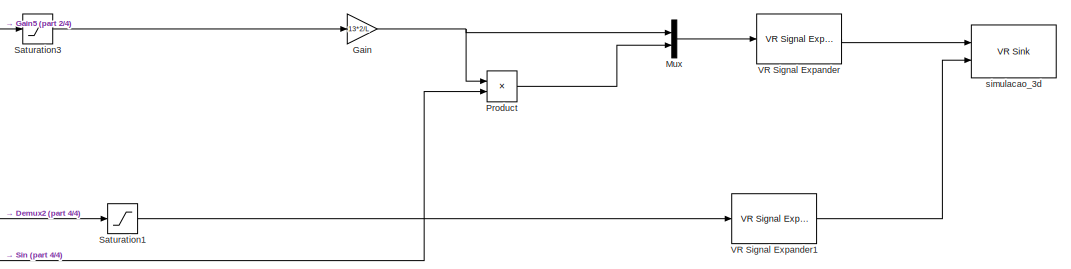
[diagram: root canvas - part 1/4, top right region]
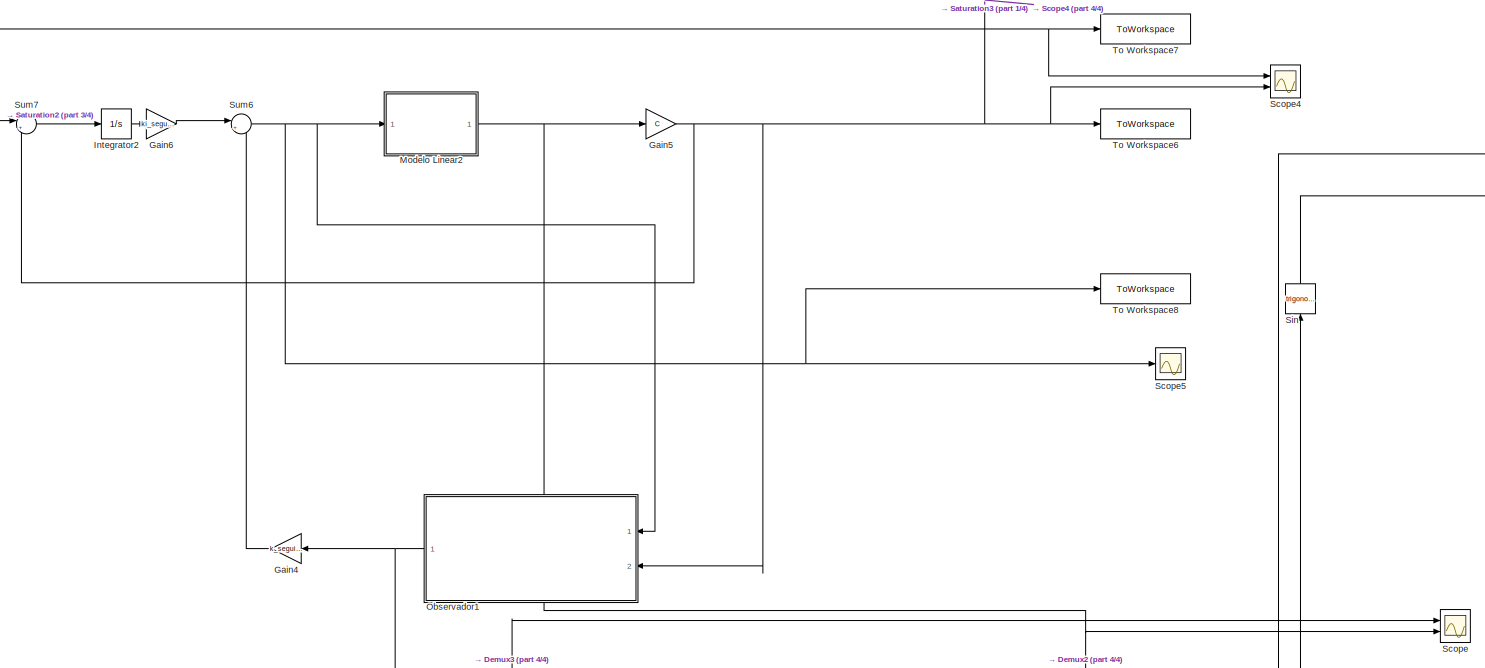
[diagram: root canvas - part 2/4, top center region]
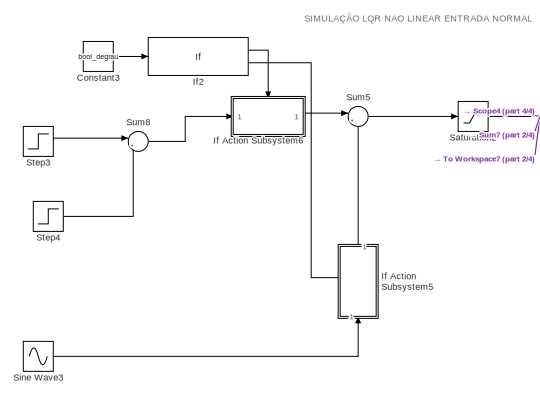
[diagram: root canvas - part 3/4, top left region]
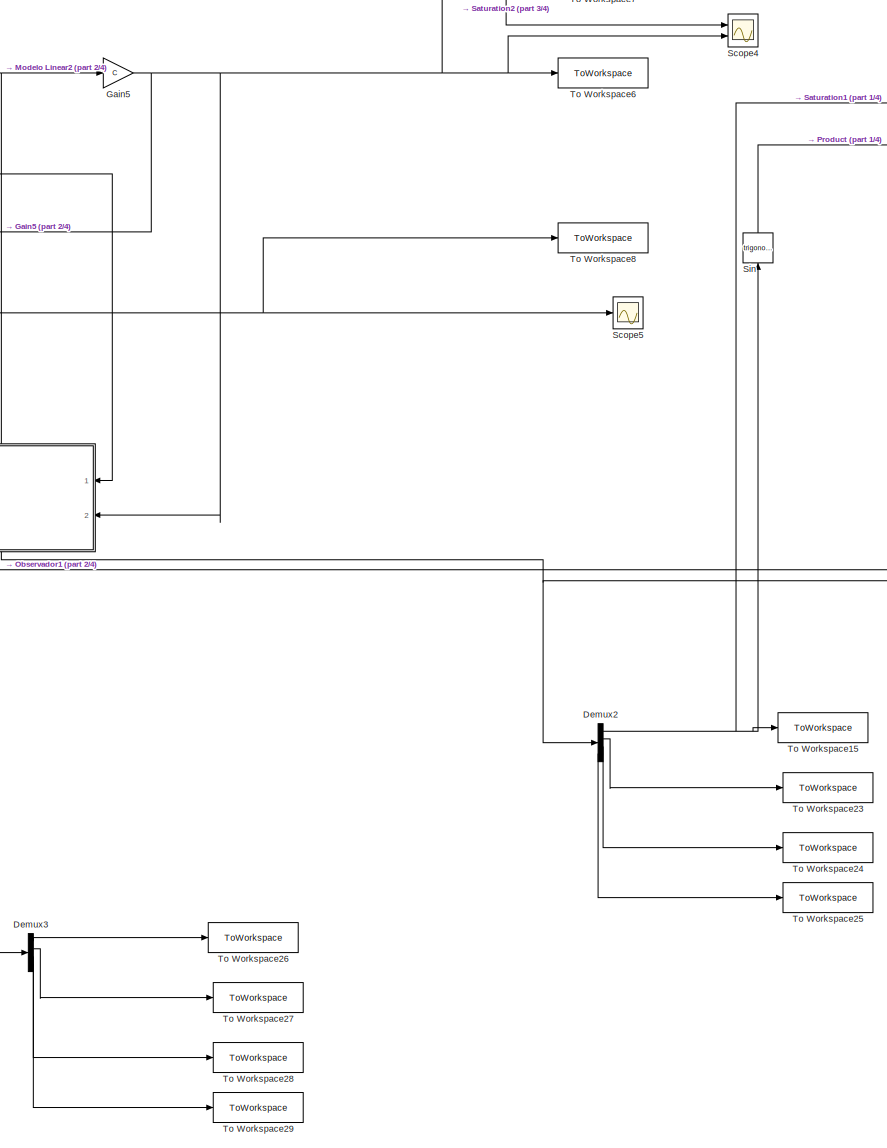
[diagram: root canvas - part 4/4, center side, full height]
MODEL slx_7931a9f5f4c9
KIND model
CONFIG AbsTol = auto
CONFIG EnableMultiTasking = off
CONFIG FixedStep = auto
CONFIG MaxStep = auto
CONFIG MinStep = auto
CONFIG RelTol = 1e-3
CONFIG SampleTimeConstraint = Unconstrained
CONFIG SolverName = VariableStepAuto
CONFIG StartTime = 0
CONFIG StopTime = 100
BLOCK [Constant] Constant3
  Value = bool_degrau
BLOCK [Demux] Demux2
  Ports = [1, 4]
BLOCK [Demux] Demux3
  Ports = [1, 4]
BLOCK [Gain] Gain
  Gain = 13*2/L
BLOCK [Gain] Gain4
  Gain = k_seguimento
  Multiplication = Matrix(K*u)
  NameLocation = top
BLOCK [Gain] Gain5
  Gain = C
  Multiplication = Matrix(K*u)
BLOCK [Gain] Gain6
  Gain = ki_seguimento
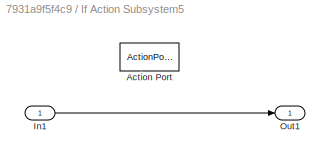
BLOCK [SubSystem] If Action Subsystem5
  NameLocation = right
  Ports = [1, 1, 0, 0, 0, 0, 0, 1]
  RequestExecContextInheritance = off
  TreatAsAtomicUnit = on
BLOCK [ActionPort] If Action Subsystem5/Action Port
  ActionPortLabel = else
BLOCK [Inport] If Action Subsystem5/In1
BLOCK [Outport] If Action Subsystem5/Out1
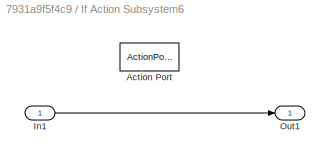
BLOCK [SubSystem] If Action Subsystem6
  Ports = [1, 1, 0, 0, 0, 0, 0, 1]
  RequestExecContextInheritance = off
  TreatAsAtomicUnit = on
BLOCK [ActionPort] If Action Subsystem6/Action Port
  ActionPortLabel = if(u1 == 1)
BLOCK [Inport] If Action Subsystem6/In1
BLOCK [Outport] If Action Subsystem6/Out1
BLOCK [If] If2
  IfExpression = u1 == 1
  Ports = [1, 2]
BLOCK [Integrator] Integrator2
  Ports = [1, 1]
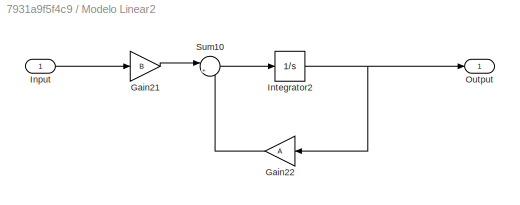
BLOCK [SubSystem] Modelo Linear2
  Ports = [1, 1]
  RequestExecContextInheritance = off
BLOCK [Gain] Modelo Linear2/Gain21
  Gain = B
  Multiplication = Matrix(K*u)
BLOCK [Gain] Modelo Linear2/Gain22
  Gain = A
  Multiplication = Matrix(K*u)
  NameLocation = top
BLOCK [Inport] Modelo Linear2/Input
BLOCK [Integrator] Modelo Linear2/Integrator2
  Ports = [1, 1]
BLOCK [Outport] Modelo Linear2/Output
BLOCK [Sum] Modelo Linear2/Sum10
  Inputs = |++
  Ports = [2, 1]
BLOCK [Mux] Mux
  DisplayOption = bar
  Inputs = 2
  Ports = [2, 1]
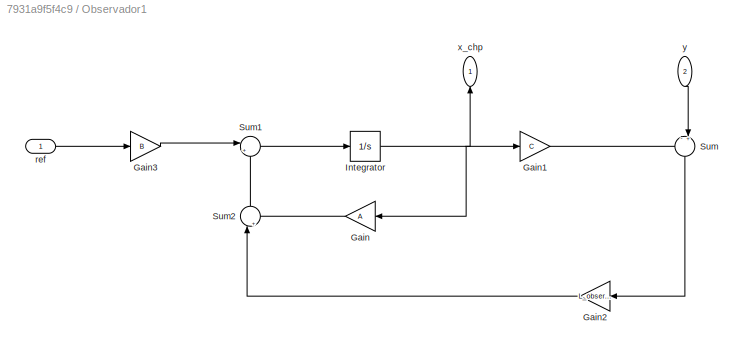
BLOCK [SubSystem] Observador1
  NameLocation = top
  Ports = [2, 1]
  RequestExecContextInheritance = off
BLOCK [Gain] Observador1/Gain
  Gain = A
  Multiplication = Matrix(K*u)
  NameLocation = top
BLOCK [Gain] Observador1/Gain1
  Gain = C
  Multiplication = Matrix(K*u)
BLOCK [Gain] Observador1/Gain2
  Gain = L_observer
  Multiplication = Matrix(K*u)
  NameLocation = top
BLOCK [Gain] Observador1/Gain3
  Gain = B
  Multiplication = Matrix(K*u)
BLOCK [Integrator] Observador1/Integrator
  Ports = [1, 1]
BLOCK [Sum] Observador1/Sum
  Inputs = -+|
  NameLocation = left
  Ports = [2, 1]
BLOCK [Sum] Observador1/Sum1
  Inputs = |++
  Ports = [2, 1]
BLOCK [Sum] Observador1/Sum2
  Inputs = |++
  NameLocation = right
  Ports = [2, 1]
BLOCK [Inport] Observador1/ref
BLOCK [Outport] Observador1/x_chp
  NameLocation = right
BLOCK [Inport] Observador1/y
  NameLocation = left
  Port = 2
BLOCK [Product] Product
  Ports = [2, 1]
BLOCK [Saturate] Saturation1
  LowerLimit = -0.8
  UpperLimit = 0.8
BLOCK [Saturate] Saturation2
  LowerLimit = -L/2
  UpperLimit = L/2
BLOCK [Saturate] Saturation3
  LowerLimit = 0
  UpperLimit = L/2
BLOCK [Scope] Scope
  Floating = off
  NumInputPorts = 2
  Ports = [2]
  ScopeSpecificationString = Simulink.scopes.TimeScopeBlockCfg('CurrentConfiguration', extmgr.ConfigurationSet(extmgr.Configuration('Core','General UI',true),extmgr.Configuration('Core','Source UI',true),extmgr.Configuration('Sources','WiredSimulink',true,'DataLoggingVariableName','ScopeData1'),extmgr.Configuration('Visuals','Time Domain',true,'SerializedDisplays',{struct('MinYLimReal','-0.03672','MaxYLimReal','0.2402','YLabe...<+2180ch>
BLOCK [Scope] Scope4
  Floating = off
  NumInputPorts = 2
  Ports = [2]
  ScopeSpecificationString = Simulink.scopes.TimeScopeBlockCfg('CurrentConfiguration', extmgr.ConfigurationSet(extmgr.Configuration('Core','General UI',true,'FigureColor',[1 1 1]),extmgr.Configuration('Core','Source UI',true),extmgr.Configuration('Sources','WiredSimulink',true,'DataLoggingVariableName','ScopeData1'),extmgr.Configuration('Visuals','Time Domain',true,'SerializedDisplays',{struct('MinYLimReal','-0.26563','MaxYLi...<+1813ch>
BLOCK [Scope] Scope5
  Floating = off
  NumInputPorts = 1
  Ports = [1]
  ScopeSpecificationString = Simulink.scopes.TimeScopeBlockCfg('CurrentConfiguration', extmgr.ConfigurationSet(extmgr.Configuration('Core','General UI',true),extmgr.Configuration('Core','Source UI',true),extmgr.Configuration('Sources','WiredSimulink',true),extmgr.Configuration('Visuals','Time Domain',true,'SerializedDisplays',{struct('MinYLimReal','-0.30216','MaxYLimReal','2.45087','YLabelReal','','MinYLimMag','0.00000','MaxY...<+1378ch>
BLOCK [Trigonometry] Sin
  NameLocation = right
  Ports = [1, 1]
BLOCK [Sin] Sine Wave3
  Amplitude = amplitude_entrada
  Frequency = 0.1
  Ports = [0, 1]
  SampleTime = 0
BLOCK [Step] Step3
  After = amplitude_entrada
  SampleTime = 0
BLOCK [Step] Step4
  After = -2*amplitude_entrada
  SampleTime = 0
  Time = 100
BLOCK [Sum] Sum5
  Inputs = |++
  Ports = [2, 1]
BLOCK [Sum] Sum6
  Inputs = |+-
  Ports = [2, 1]
BLOCK [Sum] Sum7
  Inputs = |+-
  Ports = [2, 1]
BLOCK [Sum] Sum8
  Inputs = |++
  Ports = [2, 1]
BLOCK [ToWorkspace] To Workspace15
  FixptAsFi = on
  MaxDataPoints = inf
  Ports = [1]
  SampleTime = -1
  SaveFormat = Timeseries
  VariableName = output_estados_1
BLOCK [ToWorkspace] To Workspace23
  FixptAsFi = on
  MaxDataPoints = inf
  Ports = [1]
  SampleTime = -1
  SaveFormat = Timeseries
  VariableName = output_estados_2
BLOCK [ToWorkspace] To Workspace24
  FixptAsFi = on
  MaxDataPoints = inf
  Ports = [1]
  SampleTime = -1
  SaveFormat = Timeseries
  VariableName = output_estados_3
BLOCK [ToWorkspace] To Workspace25
  FixptAsFi = on
  MaxDataPoints = inf
  Ports = [1]
  SampleTime = -1
  SaveFormat = Timeseries
  VariableName = output_estados_4
BLOCK [ToWorkspace] To Workspace26
  FixptAsFi = on
  MaxDataPoints = inf
  Ports = [1]
  SampleTime = -1
  SaveFormat = Timeseries
  VariableName = output_estados_observador_1
BLOCK [ToWorkspace] To Workspace27
  FixptAsFi = on
  MaxDataPoints = inf
  Ports = [1]
  SampleTime = -1
  SaveFormat = Timeseries
  VariableName = output_estados_observador_2
BLOCK [ToWorkspace] To Workspace28
  FixptAsFi = on
  MaxDataPoints = inf
  Ports = [1]
  SampleTime = -1
  SaveFormat = Timeseries
  VariableName = output_estados_observador_3
BLOCK [ToWorkspace] To Workspace29
  FixptAsFi = on
  MaxDataPoints = inf
  Ports = [1]
  SampleTime = -1
  SaveFormat = Timeseries
  VariableName = output_estados_observador_4
BLOCK [ToWorkspace] To Workspace6
  FixptAsFi = on
  MaxDataPoints = inf
  Ports = [1]
  SampleTime = -1
  SaveFormat = Timeseries
  VariableName = y_output
BLOCK [ToWorkspace] To Workspace7
  FixptAsFi = on
  MaxDataPoints = inf
  Ports = [1]
  SampleTime = -1
  SaveFormat = Timeseries
  VariableName = u_output
BLOCK [ToWorkspace] To Workspace8
  FixptAsFi = on
  MaxDataPoints = inf
  Ports = [1]
  SampleTime = -1
  SaveFormat = Timeseries
  VariableName = acao_controle
BLOCK [Reference] VR Signal Expander  REF=vrlib/VR Signal Expander
  Ports = [1, 1]
  SourceBlock = vrlib/VR Signal Expander
  SourceProductBaseCode = SL
  SourceType = VR Signal Expander
BLOCK [Reference] VR Signal Expander1  REF=vrlib/VR Signal Expander
  Ports = [1, 1]
  SourceBlock = vrlib/VR Signal Expander
  SourceProductBaseCode = SL
  SourceType = VR Signal Expander
BLOCK [Reference] simulacao_3d  REF=vrlib/VR Sink
  InstantiateOnLoad = on
  Ports = [2]
  SourceBlock = vrlib/VR Sink
  SourceProductBaseCode = SL
  SourceType = Virtual Reality Sink
ANNOTATION (root): SIMULAÇÃO LQR NAO LINEAR ENTRADA NORMAL
LINE Constant3:1 -> If2:1
NET Demux2:1 -> Saturation1:1, Sin:1, To Workspace15:1
LINE Demux2:2 -> To Workspace23:1
LINE Demux2:3 -> To Workspace24:1
LINE Demux2:4 -> To Workspace25:1
LINE Demux3:1 -> To Workspace26:1
LINE Demux3:2 -> To Workspace27:1
LINE Demux3:3 -> To Workspace28:1
LINE Demux3:4 -> To Workspace29:1
LINE Gain4:1 -> Sum6:2
NET Gain5:1 -> Observador1:2, Saturation3:1, Scope4:2, Sum7:2, To Workspace6:1
LINE Gain6:1 -> Sum6:1
NET Gain:1 -> Mux:1, Product:1
LINE If Action Subsystem5/In1:1 -> If Action Subsystem5/Out1:1
LINE If Action Subsystem5:1 -> Sum5:2
LINE If Action Subsystem6/In1:1 -> If Action Subsystem6/Out1:1
LINE If Action Subsystem6:1 -> Sum5:1
LINE If2:1 -> If Action Subsystem6:ifaction
LINE If2:2 -> If Action Subsystem5:ifaction
LINE Integrator2:1 -> Gain6:1
LINE Modelo Linear2/Gain21:1 -> Modelo Linear2/Sum10:1
LINE Modelo Linear2/Gain22:1 -> Modelo Linear2/Sum10:2
LINE Modelo Linear2/Input:1 -> Modelo Linear2/Gain21:1
NET Modelo Linear2/Integrator2:1 -> Modelo Linear2/Gain22:1, Modelo Linear2/Output:1
LINE Modelo Linear2/Sum10:1 -> Modelo Linear2/Integrator2:1
NET Modelo Linear2:1 -> Demux2:1, Gain5:1, Scope:2
LINE Mux:1 -> VR Signal Expander:1
LINE Observador1/Gain1:1 -> Observador1/Sum:1
LINE Observador1/Gain2:1 -> Observador1/Sum2:1
LINE Observador1/Gain3:1 -> Observador1/Sum1:1
LINE Observador1/Gain:1 -> Observador1/Sum2:2
NET Observador1/Integrator:1 -> Observador1/Gain1:1, Observador1/Gain:1, Observador1/x_chp:1
LINE Observador1/Sum1:1 -> Observador1/Integrator:1
LINE Observador1/Sum2:1 -> Observador1/Sum1:2
LINE Observador1/Sum:1 -> Observador1/Gain2:1
LINE Observador1/ref:1 -> Observador1/Gain3:1
LINE Observador1/y:1 -> Observador1/Sum:2
NET Observador1:1 -> Demux3:1, Gain4:1, Scope:1
LINE Product:1 -> Mux:2
LINE Saturation1:1 -> VR Signal Expander1:1
NET Saturation2:1 -> Scope4:1, Sum7:1, To Workspace7:1
LINE Saturation3:1 -> Gain:1
LINE Sin:1 -> Product:2
LINE Sine Wave3:1 -> If Action Subsystem5:1
LINE Step3:1 -> Sum8:1
LINE Step4:1 -> Sum8:2
LINE Sum5:1 -> Saturation2:1
NET Sum6:1 -> Modelo Linear2:1, Observador1:1, Scope5:1, To Workspace8:1
LINE Sum7:1 -> Integrator2:1
LINE Sum8:1 -> If Action Subsystem6:1
LINE VR Signal Expander1:1 -> simulacao_3d:2
LINE VR Signal Expander:1 -> simulacao_3d:1
note: NET lines group one-source signal fan-out (src -> all destinations, sorted); 1:1 wires keep LINE
